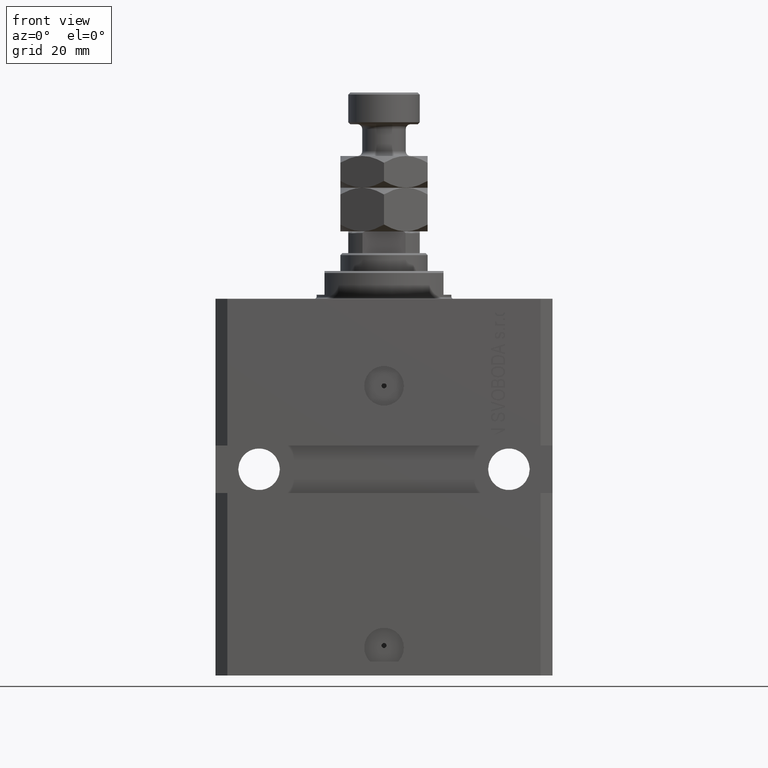
[diagram: clean part render]
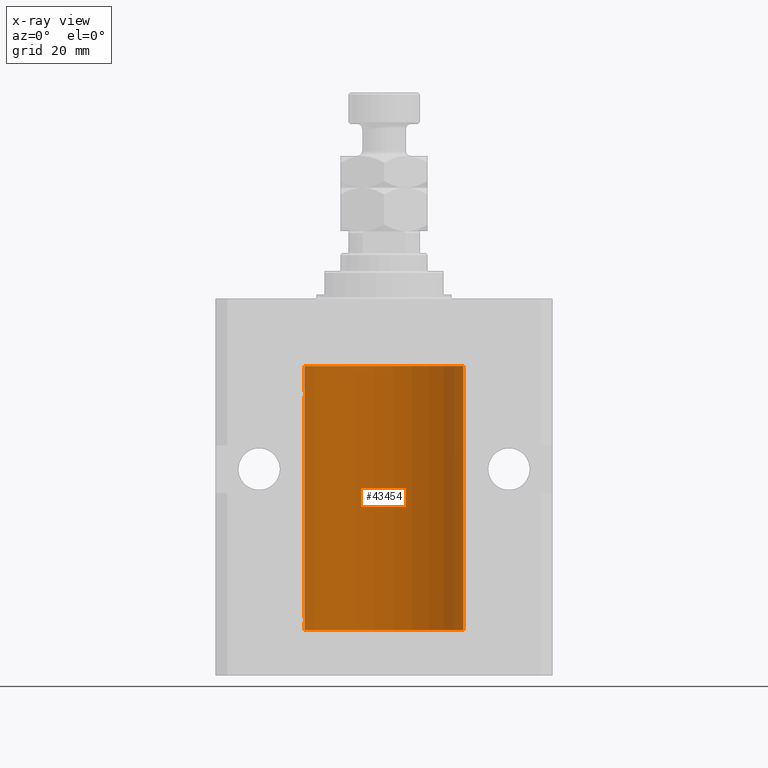
[diagram: x-ray — body ghosted, one internal face saturated and labeled with its STEP entity id]
A machine part, front view, then the same camera in x-ray: the body is ghosted and one INTERNAL B-rep face — a face not visible from any outside direction — is saturated and labeled: STEP entity #43454.
In plain terms, the highlighted cylindrical surface (partial cylindrical patch) has radius 20 mm, axis along (0, 0, 1).
Its self-contained STEP definition (entity closure, byte-faithful):
#21 = CARTESIAN_POINT ( 'NONE',  ( -20.00000000000000355, 0.1631688615953342802, -81.62499999999985789 ) ) ;
#1949 = ORIENTED_EDGE ( 'NONE', *, *, #16992, .F. ) ;
#2473 = CARTESIAN_POINT ( 'NONE',  ( -19.99766197842594906, 0.3150331617867667688, -23.45402070102505476 ) ) ;
#2724 = CARTESIAN_POINT ( 'NONE',  ( -19.99769349528941120, 0.3253804398728645242, -24.55855820727680339 ) ) ;
#4282 = ORIENTED_EDGE ( 'NONE', *, *, #33264, .T. ) ;
#4731 = CARTESIAN_POINT ( 'NONE',  ( -19.99638934703457593, 0.3843678041337649232, -80.50046362978100944 ) ) ;
#6473 = B_SPLINE_CURVE_WITH_KNOTS ( 'NONE', 3,
 ( #18961, #27155, #11236, #42584, #4731, #31133, #27395, #19924, #41622, #11484, #21, #42341 ),
 .UNSPECIFIED., .F., .F.,
 ( 4, 2, 2, 2, 2, 4 ),
 ( 1.945385910602862889E-18, 0.0002442693137305184271, 0.0004885386274610349026, 0.0009770772549220969102, 0.001465615882383158701, 0.001954154509844220709 ),
 .UNSPECIFIED. ) ;
#6701 = EDGE_CURVE ( 'NONE', #35787, #32900, #10209, .T. ) ;
#7160 = DIRECTION ( 'NONE',  ( -0.000000000000000000, -0.000000000000000000, 1.000000000000000000 ) ) ;
#9329 = DIRECTION ( 'NONE',  ( 1.000000000000000000, 0.000000000000000000, 0.000000000000000000 ) ) ;
#10209 = B_SPLINE_CURVE_WITH_KNOTS ( 'NONE', 3,
 ( #41067, #25879, #18420, #2473, #10925, #33599, #41316, #25638, #29120, #2724, #29614, #33843 ),
 .UNSPECIFIED., .F., .F.,
 ( 4, 2, 2, 2, 2, 4 ),
 ( 5.848927291235706941E-19, 0.0002442693137305304075, 0.0004885386274610601645, 0.0009770772549221123059, 0.001465615882383164339, 0.001954154509844215938 ),
 .UNSPECIFIED. ) ;
#10259 = AXIS2_PLACEMENT_3D ( 'NONE', #24520, #14055, #9329 ) ;
#10467 = DIRECTION ( 'NONE',  ( -0.000000000000000000, -0.000000000000000000, 1.000000000000000000 ) ) ;
#10853 = ORIENTED_EDGE ( 'NONE', *, *, #40925, .F. ) ;
#10925 = CARTESIAN_POINT ( 'NONE',  ( -19.99638934703457593, 0.3843678041337688644, -23.50046362978100944 ) ) ;
#11236 = CARTESIAN_POINT ( 'NONE',  ( -19.99947377218718358, 0.1636439183262796693, -80.39126364004653169 ) ) ;
#11370 = VECTOR ( 'NONE', #10467, 1000.000000000000000 ) ;
#11484 = CARTESIAN_POINT ( 'NONE',  ( -19.99769349528941476, 0.3253804398728613045, -81.55855820727678918 ) ) ;
#13245 = VERTEX_POINT ( 'NONE', #19499 ) ;
#13476 = VERTEX_POINT ( 'NONE', #42886 ) ;
#13576 = EDGE_LOOP ( 'NONE', ( #10853, #18905, #44832, #4282, #1949, #43486, #25733, #42386 ) ) ;
#14055 = DIRECTION ( 'NONE',  ( 0.000000000000000000, 0.000000000000000000, 1.000000000000000000 ) ) ;
#15835 = VECTOR ( 'NONE', #28995, 1000.000000000000000 ) ;
#16254 = CYLINDRICAL_SURFACE ( 'NONE', #41408, 20.00000000000000000 ) ;
#16992 = EDGE_CURVE ( 'NONE', #35787, #42794, #29139, .T. ) ;
#18420 = CARTESIAN_POINT ( 'NONE',  ( -19.99947377218718714, 0.1636439183262877461, -23.39126364004656011 ) ) ;
#18905 = ORIENTED_EDGE ( 'NONE', *, *, #40938, .F. ) ;
#18961 = CARTESIAN_POINT ( 'NONE',  ( -20.00000000000000000, -1.192146611001691549E-14, -80.37500000000000000 ) ) ;
#19499 = CARTESIAN_POINT ( 'NONE',  ( 20.00000000000000000, 0.000000000000000000, -83.59999999999999432 ) ) ;
#19589 = EDGE_CURVE ( 'NONE', #48993, #32900, #28623, .T. ) ;
#19924 = CARTESIAN_POINT ( 'NONE',  ( -19.99023018003212471, 0.6250578794725518694, -81.16284809704968950 ) ) ;
#19940 = CARTESIAN_POINT ( 'NONE',  ( 0.000000000000000000, 0.000000000000000000, -17.00000000000000000 ) ) ;
#20242 = CARTESIAN_POINT ( 'NONE',  ( -20.00000000000010303, 3.580159278407742946E-13, -24.62500000000332889 ) ) ;
#20644 = CARTESIAN_POINT ( 'NONE',  ( -20.00000000000000000, 2.449293598294706513E-15, -83.59999999999999432 ) ) ;
#20659 = CARTESIAN_POINT ( 'NONE',  ( -20.00000000000000000, 2.449293598294706513E-15, -83.59999999999999432 ) ) ;
#21417 = CARTESIAN_POINT ( 'NONE',  ( -20.00000000000000000, 2.449293598294706513E-15, -83.59999999999999432 ) ) ;
#23665 = DIRECTION ( 'NONE',  ( 0.000000000000000000, 0.000000000000000000, 1.000000000000000000 ) ) ;
#23712 = VERTEX_POINT ( 'NONE', #20644 ) ;
#24520 = CARTESIAN_POINT ( 'NONE',  ( 0.000000000000000000, 0.000000000000000000, -83.59999999999999432 ) ) ;
#25638 = CARTESIAN_POINT ( 'NONE',  ( -19.99023018003212471, 0.6250578794725500931, -24.16284809704970371 ) ) ;
#25733 = ORIENTED_EDGE ( 'NONE', *, *, #19589, .F. ) ;
#25879 = CARTESIAN_POINT ( 'NONE',  ( -19.99999999999999645, 0.08259581631026780002, -23.37500000000000000 ) ) ;
#27155 = CARTESIAN_POINT ( 'NONE',  ( -19.99999999999999289, 0.08259581631026111093, -80.37500000000001421 ) ) ;
#27395 = CARTESIAN_POINT ( 'NONE',  ( -19.99023380173165876, 0.6249420416828446179, -80.83670793056393222 ) ) ;
#27885 = DIRECTION ( 'NONE',  ( -0.000000000000000000, -0.000000000000000000, 1.000000000000000000 ) ) ;
#28623 = LINE ( 'NONE', #20659, #34511 ) ;
#28995 = DIRECTION ( 'NONE',  ( -0.000000000000000000, -0.000000000000000000, 1.000000000000000000 ) ) ;
#29120 = CARTESIAN_POINT ( 'NONE',  ( -19.99253506710754991, 0.5587120480776751608, -24.32511620830248589 ) ) ;
#29139 = LINE ( 'NONE', #21417, #11370 ) ;
#29614 = CARTESIAN_POINT ( 'NONE',  ( -20.00000000000000000, 0.1631688615953320320, -24.62499999999985434 ) ) ;
#30492 = EDGE_CURVE ( 'NONE', #48993, #43969, #6473, .T. ) ;
#31133 = CARTESIAN_POINT ( 'NONE',  ( -19.99256581701871838, 0.5573276956901991319, -80.67348565770947744 ) ) ;
#31428 = DIRECTION ( 'NONE',  ( 1.000000000000000000, 0.000000000000000000, 0.000000000000000000 ) ) ;
#31672 = CARTESIAN_POINT ( 'NONE',  ( 0.000000000000000000, 0.000000000000000000, -83.59999999999999432 ) ) ;
#31790 = EDGE_CURVE ( 'NONE', #13245, #13476, #32809, .T. ) ;
#32809 = LINE ( 'NONE', #33055, #37111 ) ;
#32900 = VERTEX_POINT ( 'NONE', #20242 ) ;
#33055 = CARTESIAN_POINT ( 'NONE',  ( 20.00000000000000000, 0.000000000000000000, -83.59999999999999432 ) ) ;
#33131 = CARTESIAN_POINT ( 'NONE',  ( -20.00000000000010303, 3.580159286679549072E-13, -81.62500000000333955 ) ) ;
#33153 = CARTESIAN_POINT ( 'NONE',  ( -20.00000000000000000, 2.449293598294706513E-15, -17.00000000000000000 ) ) ;
#33264 = EDGE_CURVE ( 'NONE', #13476, #42794, #35573, .T. ) ;
#33599 = CARTESIAN_POINT ( 'NONE',  ( -19.99256581701871482, 0.5573276956902001311, -23.67348565770948809 ) ) ;
#33843 = CARTESIAN_POINT ( 'NONE',  ( -20.00000000000010303, 3.580159278407742946E-13, -24.62500000000332889 ) ) ;
#34383 = CARTESIAN_POINT ( 'NONE',  ( -20.00000000000000000, -2.867584836844214272E-15, -23.37500000000000000 ) ) ;
#34511 = VECTOR ( 'NONE', #27885, 1000.000000000000000 ) ;
#35422 = DIRECTION ( 'NONE',  ( -0.000000000000000000, -0.000000000000000000, 1.000000000000000000 ) ) ;
#35573 = CIRCLE ( 'NONE', #46726, 20.00000000000000000 ) ;
#35787 = VERTEX_POINT ( 'NONE', #34383 ) ;
#37111 = VECTOR ( 'NONE', #7160, 1000.000000000000000 ) ;
#37322 = CIRCLE ( 'NONE', #10259, 20.00000000000000000 ) ;
#37339 = CARTESIAN_POINT ( 'NONE',  ( -20.00000000000000000, -1.192146611001691549E-14, -80.37500000000000000 ) ) ;
#38422 = FACE_OUTER_BOUND ( 'NONE', #13576, .T. ) ;
#38615 = DIRECTION ( 'NONE',  ( 1.000000000000000000, 0.000000000000000000, 0.000000000000000000 ) ) ;
#40925 = EDGE_CURVE ( 'NONE', #23712, #43969, #43685, .T. ) ;
#40938 = EDGE_CURVE ( 'NONE', #13245, #23712, #37322, .T. ) ;
#41067 = CARTESIAN_POINT ( 'NONE',  ( -20.00000000000000000, -2.867584836844214272E-15, -23.37500000000000000 ) ) ;
#41316 = CARTESIAN_POINT ( 'NONE',  ( -19.99023380173166231, 0.6249420416828462832, -23.83670793056396064 ) ) ;
#41408 = AXIS2_PLACEMENT_3D ( 'NONE', #31672, #35422, #31428 ) ;
#41622 = CARTESIAN_POINT ( 'NONE',  ( -19.99253506710754991, 0.5587120480776741616, -81.32511620830248944 ) ) ;
#42341 = CARTESIAN_POINT ( 'NONE',  ( -20.00000000000010303, 3.580159286679549072E-13, -81.62500000000333955 ) ) ;
#42386 = ORIENTED_EDGE ( 'NONE', *, *, #30492, .T. ) ;
#42584 = CARTESIAN_POINT ( 'NONE',  ( -19.99766197842594906, 0.3150331617867603295, -80.45402070102504410 ) ) ;
#42794 = VERTEX_POINT ( 'NONE', #33153 ) ;
#42886 = CARTESIAN_POINT ( 'NONE',  ( 20.00000000000000000, 0.000000000000000000, -17.00000000000000000 ) ) ;
#43454 = ADVANCED_FACE ( 'NONE', ( #38422 ), #16254, .F. ) ;
#43486 = ORIENTED_EDGE ( 'NONE', *, *, #6701, .T. ) ;
#43685 = LINE ( 'NONE', #48158, #15835 ) ;
#43969 = VERTEX_POINT ( 'NONE', #33131 ) ;
#44832 = ORIENTED_EDGE ( 'NONE', *, *, #31790, .T. ) ;
#46726 = AXIS2_PLACEMENT_3D ( 'NONE', #19940, #23665, #38615 ) ;
#48158 = CARTESIAN_POINT ( 'NONE',  ( -20.00000000000000000, 2.449293598294706513E-15, -83.59999999999999432 ) ) ;
#48993 = VERTEX_POINT ( 'NONE', #37339 ) ;